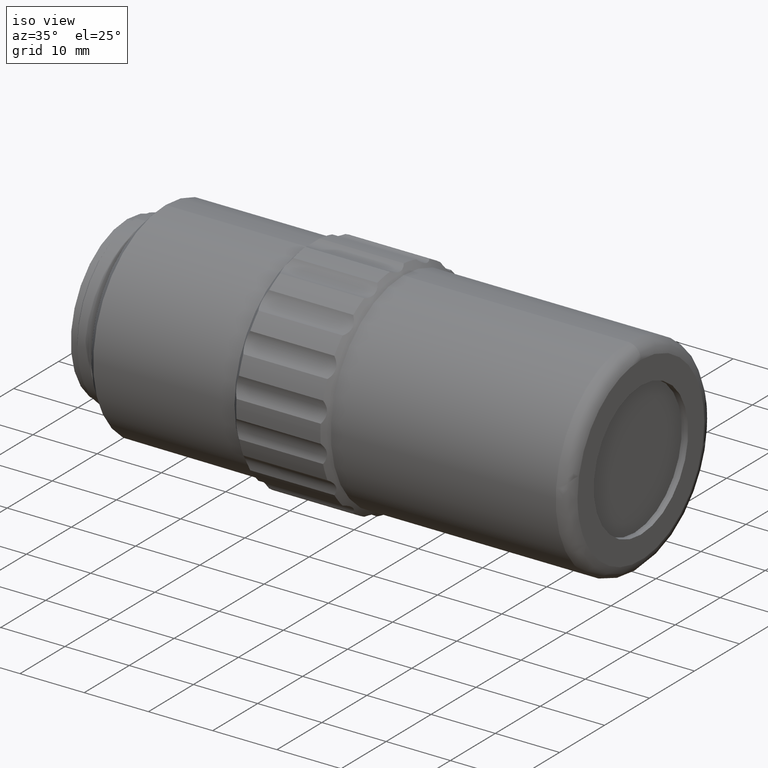
[diagram: clean part render]
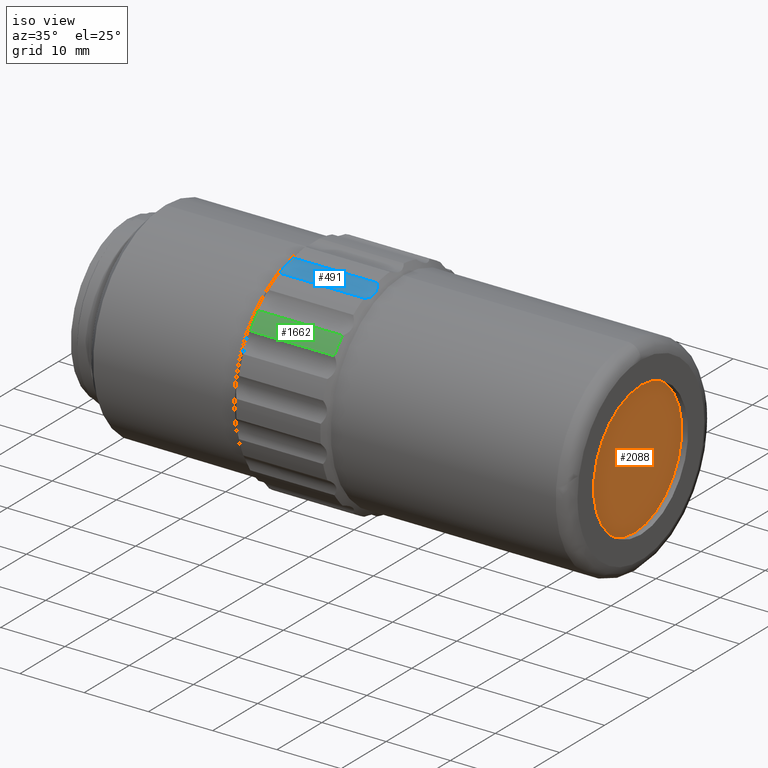
[diagram: same view with three faces highlighted in distinct colors, each labeled with its STEP entity id]
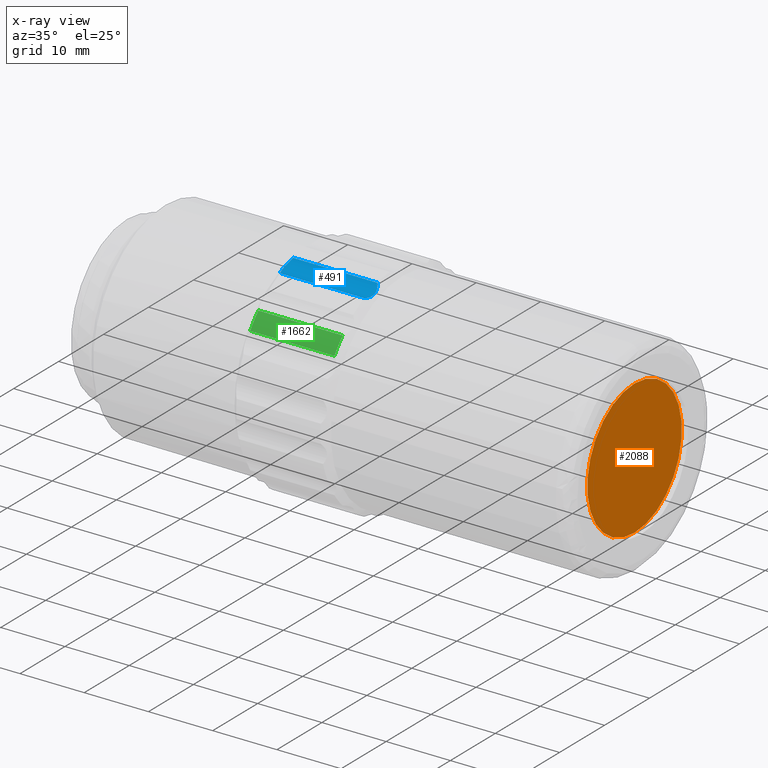
[diagram: x-ray of the same camera — body ghosted, the three highlighted faces saturated]
A machine part, iso view with three faces highlighted in distinct colors.
The next image is the same camera in x-ray (body ghosted, the three faces saturated) — at least one of them is partly hidden behind the body in this view.
Their STEP definitions:

[orange] entity #2088 — the highlighted planar face has unit normal (1, 0, 0).
#351 = AXIS2_PLACEMENT_3D ( 'NONE', #516, #2015, #1010 ) ;
#396 = DIRECTION ( 'NONE',  ( 1.000000000000000000, 0.000000000000000000, 0.000000000000000000 ) ) ;
#516 = CARTESIAN_POINT ( 'NONE',  ( 69.44685803487880094, 46.02096199999999726, 4.350675744370770171E-31 ) ) ;
#711 = VERTEX_POINT ( 'NONE', #1210 ) ;
#746 = DIRECTION ( 'NONE',  ( 0.000000000000000000, 0.000000000000000000, -1.000000000000000000 ) ) ;
#753 = CIRCLE ( 'NONE', #351, 10.50000000000000000 ) ;
#859 = AXIS2_PLACEMENT_3D ( 'NONE', #1513, #396, #746 ) ;
#942 = EDGE_CURVE ( 'NONE', #711, #711, #753, .T. ) ;
#959 = ORIENTED_EDGE ( 'NONE', *, *, #942, .T. ) ;
#1010 = DIRECTION ( 'NONE',  ( 0.000000000000000000, 0.000000000000000000, -1.000000000000000000 ) ) ;
#1131 = EDGE_LOOP ( 'NONE', ( #959 ) ) ;
#1210 = CARTESIAN_POINT ( 'NONE',  ( 69.44685803487880094, 46.02096199999999726, -10.50000000000000000 ) ) ;
#1380 = FACE_OUTER_BOUND ( 'NONE', #1131, .T. ) ;
#1513 = CARTESIAN_POINT ( 'NONE',  ( 69.44685803487880094, 46.02096199999999726, 0.000000000000000000 ) ) ;
#2015 = DIRECTION ( 'NONE',  ( 1.000000000000000000, 0.000000000000000000, 0.000000000000000000 ) ) ;
#2041 = PLANE ( 'NONE',  #859 ) ;
#2088 = ADVANCED_FACE ( 'NONE', ( #1380 ), #2041, .T. ) ;

[blue] entity #491 — the highlighted cylindrical surface (edge-blend (fillet) strip) has radius 3 mm, axis along (-1, 0, 0).
#23 = CARTESIAN_POINT ( 'NONE',  ( 19.34685803487881728, 41.68421451916362486, 16.43753695927285108 ) ) ;
#109 = CARTESIAN_POINT ( 'NONE',  ( 18.90699781735014895, 39.82626761767229340, 15.35848564612280498 ) ) ;
#153 = CARTESIAN_POINT ( 'NONE',  ( 32.44685803487878673, 38.77725821771978332, 15.37949139323467307 ) ) ;
#163 = VERTEX_POINT ( 'NONE', #1565 ) ;
#225 = AXIS2_PLACEMENT_3D ( 'NONE', #1782, #1183, #666 ) ;
#236 = EDGE_CURVE ( 'NONE', #839, #163, #269, .T. ) ;
#269 = LINE ( 'NONE', #761, #1621 ) ;
#277 = EDGE_LOOP ( 'NONE', ( #971, #1454, #1937, #1816 ) ) ;
#289 = DIRECTION ( 'NONE',  ( -1.000000000000000000, 0.000000000000000000, 0.000000000000000000 ) ) ;
#291 = CARTESIAN_POINT ( 'NONE',  ( 32.88806413580810073, 39.83200033124971640, 15.35935614810683880 ) ) ;
#301 = CARTESIAN_POINT ( 'NONE',  ( 19.19974036611871782, 41.52778952056896600, 16.24411527478357797 ) ) ;
#311 = CARTESIAN_POINT ( 'NONE',  ( 18.94098152749739583, 41.00885879755391983, 15.81961940227120600 ) ) ;
#367 = DIRECTION ( 'NONE',  ( 1.000000000000000000, -0.000000000000000000, -0.000000000000000000 ) ) ;
#411 = CARTESIAN_POINT ( 'NONE',  ( 32.44685803487876541, 41.68421451916363196, 16.43753695927285818 ) ) ;
#436 = CARTESIAN_POINT ( 'NONE',  ( 18.90565193394951393, 40.88917787025663841, 15.74413730464017647 ) ) ;
#445 = CARTESIAN_POINT ( 'NONE',  ( 32.71993598786257706, 39.28402702137709923, 15.31241445645988897 ) ) ;
#455 = CARTESIAN_POINT ( 'NONE',  ( 32.93404516599889575, 40.64711861377920599, 15.61454086166572175 ) ) ;
#465 = CARTESIAN_POINT ( 'NONE',  ( 32.88671825240743374, 40.89412893152615425, 15.74715537869002624 ) ) ;
#476 = CARTESIAN_POINT ( 'NONE',  ( 18.85870489934780281, 40.63989956541260540, 15.61104309072567098 ) ) ;
#491 = ADVANCED_FACE ( 'NONE', ( #533 ), #1828, .F. ) ;
#514 = VERTEX_POINT ( 'NONE', #23 ) ;
#533 = FACE_OUTER_BOUND ( 'NONE', #277, .T. ) ;
#602 = CARTESIAN_POINT ( 'NONE',  ( 32.94700126034476995, 40.24512641806274615, 15.45657204746855840 ) ) ;
#614 = CARTESIAN_POINT ( 'NONE',  ( 32.59371544402079479, 41.52806624538890645, 16.24445744886884668 ) ) ;
#636 = CARTESIAN_POINT ( 'NONE',  ( 32.59397570363890395, 39.02141578089251084, 15.33186983759482658 ) ) ;
#666 = DIRECTION ( 'NONE',  ( 0.000000000000000000, 0.000000000000000000, 1.000000000000000000 ) ) ;
#761 = CARTESIAN_POINT ( 'NONE',  ( 25.94685803487879738, 38.77725821771979753, 15.37949139323467840 ) ) ;
#763 = CARTESIAN_POINT ( 'NONE',  ( 32.85210940846933170, 41.01085505425493238, 15.82091131322985866 ) ) ;
#775 = CARTESIAN_POINT ( 'NONE',  ( 19.07378008189504470, 41.33912331703041332, 16.06040833662847689 ) ) ;
#839 = VERTEX_POINT ( 'NONE', #974 ) ;
#926 = CARTESIAN_POINT ( 'NONE',  ( 19.34685803487881728, 41.68421451916362486, 16.43753695927285108 ) ) ;
#931 = B_SPLINE_CURVE_WITH_KNOTS ( 'NONE', 3,
 ( #1439, #1761, #1771, #1615, #109, #1252, #2080, #2090, #476, #436, #311, #775, #301, #926 ),
 .UNSPECIFIED., .F., .F.,
 ( 4, 2, 2, 2, 2, 2, 4 ),
 ( 0.000000000000000000, 0.0008570537395405683056, 0.001285580609310852567, 0.001714107479081136611, 0.002142634348851422607, 0.002571161218621709037, 0.003428214958162284064 ),
 .UNSPECIFIED. ) ;
#947 = CARTESIAN_POINT ( 'NONE',  ( 32.44685803487876541, 41.68421451916363196, 16.43753695927285818 ) ) ;
#971 = ORIENTED_EDGE ( 'NONE', *, *, #1607, .F. ) ;
#974 = CARTESIAN_POINT ( 'NONE',  ( 32.44685803487878673, 38.77725821771978332, 15.37949139323467307 ) ) ;
#1013 = CARTESIAN_POINT ( 'NONE',  ( 53.58686043487880823, 41.68421451916363196, 16.43753695927285818 ) ) ;
#1014 = B_SPLINE_CURVE_WITH_KNOTS ( 'NONE', 3,
 ( #947, #614, #1744, #763, #465, #455, #1105, #602, #1752, #291, #1591, #445, #636, #153 ),
 .UNSPECIFIED., .F., .F.,
 ( 4, 2, 2, 2, 2, 2, 4 ),
 ( 1.430489624538199204E-17, 0.0008570537395405792560, 0.001285580609310864927, 0.001714107479081150706, 0.002142634348851436485, 0.002571161218621722047, 0.003428214958162300111 ),
 .UNSPECIFIED. ) ;
#1105 = CARTESIAN_POINT ( 'NONE',  ( 32.94671223884984812, 40.51493292579076666, 15.55503383706371423 ) ) ;
#1183 = DIRECTION ( 'NONE',  ( -1.000000000000000000, 0.000000000000000000, 0.000000000000000000 ) ) ;
#1252 = CARTESIAN_POINT ( 'NONE',  ( 18.85967090375866917, 40.10073146738318428, 15.41567220399190674 ) ) ;
#1439 = CARTESIAN_POINT ( 'NONE',  ( 19.34685803487879596, 38.77725821771979753, 15.37949139323466952 ) ) ;
#1454 = ORIENTED_EDGE ( 'NONE', *, *, #1973, .F. ) ;
#1488 = VERTEX_POINT ( 'NONE', #411 ) ;
#1493 = LINE ( 'NONE', #1013, #1583 ) ;
#1565 = CARTESIAN_POINT ( 'NONE',  ( 19.34685803487879596, 38.77725821771979753, 15.37949139323466952 ) ) ;
#1583 = VECTOR ( 'NONE', #367, 1000.000000000000000 ) ;
#1589 = EDGE_CURVE ( 'NONE', #163, #514, #931, .T. ) ;
#1591 = CARTESIAN_POINT ( 'NONE',  ( 32.85273454226021528, 39.69180046483592861, 15.34024937236955743 ) ) ;
#1607 = EDGE_CURVE ( 'NONE', #1488, #839, #1014, .T. ) ;
#1615 = CARTESIAN_POINT ( 'NONE',  ( 18.94160666128824033, 39.68944081912604815, 15.33995586450727799 ) ) ;
#1621 = VECTOR ( 'NONE', #289, 1000.000000000000000 ) ;
#1744 = CARTESIAN_POINT ( 'NONE',  ( 32.71832649179924601, 41.34222858161454184, 16.06300466438845120 ) ) ;
#1752 = CARTESIAN_POINT ( 'NONE',  ( 32.93501117040980120, 40.10850990309082675, 15.41763307084376500 ) ) ;
#1761 = CARTESIAN_POINT ( 'NONE',  ( 19.20000062573677369, 39.02098385211957776, 15.33195408286589334 ) ) ;
#1771 = CARTESIAN_POINT ( 'NONE',  ( 19.07538957795832246, 39.27997936338323370, 15.31240733331346959 ) ) ;
#1782 = CARTESIAN_POINT ( 'NONE',  ( 53.58686043487880823, 39.35156920514940282, 18.32400610532519991 ) ) ;
#1816 = ORIENTED_EDGE ( 'NONE', *, *, #236, .F. ) ;
#1828 = CYLINDRICAL_SURFACE ( 'NONE', #225, 2.999999999999999112 ) ;
#1937 = ORIENTED_EDGE ( 'NONE', *, *, #1589, .F. ) ;
#1973 = EDGE_CURVE ( 'NONE', #514, #1488, #1493, .T. ) ;
#2080 = CARTESIAN_POINT ( 'NONE',  ( 18.84700383090773812, 40.24024195723007580, 15.45505450088586308 ) ) ;
#2090 = CARTESIAN_POINT ( 'NONE',  ( 18.84671480941282695, 40.51021575157177779, 15.55305667428731553 ) ) ;

[green] entity #1662 — the highlighted cylindrical surface (partial cylindrical patch) has radius 17 mm, axis along (-1, 0, 0).
#3 = CYLINDRICAL_SURFACE ( 'NONE', #2000, 17.00000000000000000 ) ;
#50 = DIRECTION ( 'NONE',  ( 0.000000000000000000, 0.000000000000000000, 1.000000000000000000 ) ) ;
#127 = VERTEX_POINT ( 'NONE', #1723 ) ;
#134 = EDGE_CURVE ( 'NONE', #127, #1658, #591, .T. ) ;
#179 = CARTESIAN_POINT ( 'NONE',  ( 19.34685803487879596, 46.02096199999999726, 0.000000000000000000 ) ) ;
#202 = CARTESIAN_POINT ( 'NONE',  ( 32.44685803487877962, 33.95401115804232006, 11.97450196783887932 ) ) ;
#203 = EDGE_CURVE ( 'NONE', #1030, #1658, #1355, .T. ) ;
#260 = DIRECTION ( 'NONE',  ( 0.000000000000000000, 1.000000000000000000, 6.217248937900876626E-15 ) ) ;
#323 = DIRECTION ( 'NONE',  ( -1.000000000000000000, 0.000000000000000000, 0.000000000000000000 ) ) ;
#384 = VECTOR ( 'NONE', #1756, 1000.000000000000000 ) ;
#473 = VECTOR ( 'NONE', #741, 1000.000000000000000 ) ;
#535 = CARTESIAN_POINT ( 'NONE',  ( 25.94685803487879738, 46.02096199999999726, 0.000000000000000000 ) ) ;
#591 = LINE ( 'NONE', #1417, #473 ) ;
#603 = ORIENTED_EDGE ( 'NONE', *, *, #134, .T. ) ;
#635 = CIRCLE ( 'NONE', #2057, 17.00000000000000000 ) ;
#724 = DIRECTION ( 'NONE',  ( 1.000000000000000000, -0.000000000000000000, -0.000000000000000000 ) ) ;
#741 = DIRECTION ( 'NONE',  ( 1.000000000000000000, -0.000000000000000000, -0.000000000000000000 ) ) ;
#807 = AXIS2_PLACEMENT_3D ( 'NONE', #1751, #2079, #260 ) ;
#837 = CARTESIAN_POINT ( 'NONE',  ( 25.94685803487879738, 33.95401115804232006, 11.97450196783886867 ) ) ;
#864 = EDGE_CURVE ( 'NONE', #1030, #2081, #1930, .T. ) ;
#1030 = VERTEX_POINT ( 'NONE', #202 ) ;
#1075 = DIRECTION ( 'NONE',  ( 0.000000000000000000, 8.163404592832032979E-16, 1.000000000000000000 ) ) ;
#1269 = ORIENTED_EDGE ( 'NONE', *, *, #864, .T. ) ;
#1355 = CIRCLE ( 'NONE', #807, 17.00000000000001421 ) ;
#1417 = CARTESIAN_POINT ( 'NONE',  ( 53.58686043487880823, 32.13297559990991914, 9.804276299192837385 ) ) ;
#1453 = EDGE_LOOP ( 'NONE', ( #603, #1854, #1269, #2021 ) ) ;
#1658 = VERTEX_POINT ( 'NONE', #1663 ) ;
#1662 = ADVANCED_FACE ( 'NONE', ( #1820 ), #3, .T. ) ;
#1663 = CARTESIAN_POINT ( 'NONE',  ( 32.44685803487876541, 32.13297559990991914, 9.804276299192837385 ) ) ;
#1721 = EDGE_CURVE ( 'NONE', #2081, #127, #635, .T. ) ;
#1723 = CARTESIAN_POINT ( 'NONE',  ( 19.34685803487881017, 32.13297559990991914, 9.804276299192830280 ) ) ;
#1751 = CARTESIAN_POINT ( 'NONE',  ( 32.44685803487877962, 46.02096199999999726, 0.000000000000000000 ) ) ;
#1756 = DIRECTION ( 'NONE',  ( -1.000000000000000000, 0.000000000000000000, 0.000000000000000000 ) ) ;
#1820 = FACE_OUTER_BOUND ( 'NONE', #1453, .T. ) ;
#1854 = ORIENTED_EDGE ( 'NONE', *, *, #203, .F. ) ;
#1857 = CARTESIAN_POINT ( 'NONE',  ( 19.34685803487880307, 33.95401115804232006, 11.97450196783887932 ) ) ;
#1930 = LINE ( 'NONE', #837, #384 ) ;
#2000 = AXIS2_PLACEMENT_3D ( 'NONE', #535, #323, #50 ) ;
#2021 = ORIENTED_EDGE ( 'NONE', *, *, #1721, .T. ) ;
#2057 = AXIS2_PLACEMENT_3D ( 'NONE', #179, #724, #1075 ) ;
#2079 = DIRECTION ( 'NONE',  ( 1.000000000000000000, -0.000000000000000000, -0.000000000000000000 ) ) ;
#2081 = VERTEX_POINT ( 'NONE', #1857 ) ;